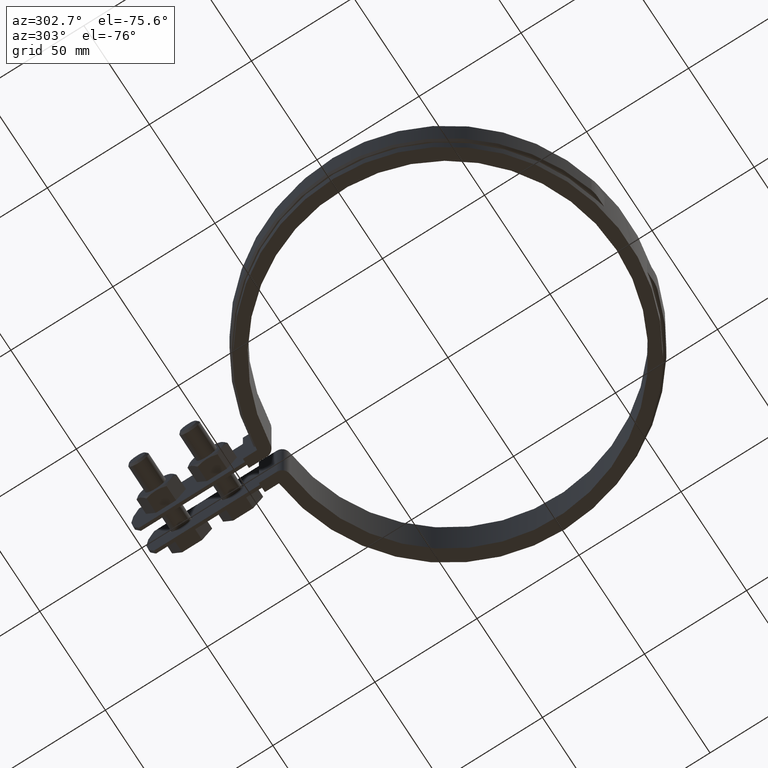
[diagram: clean part render]
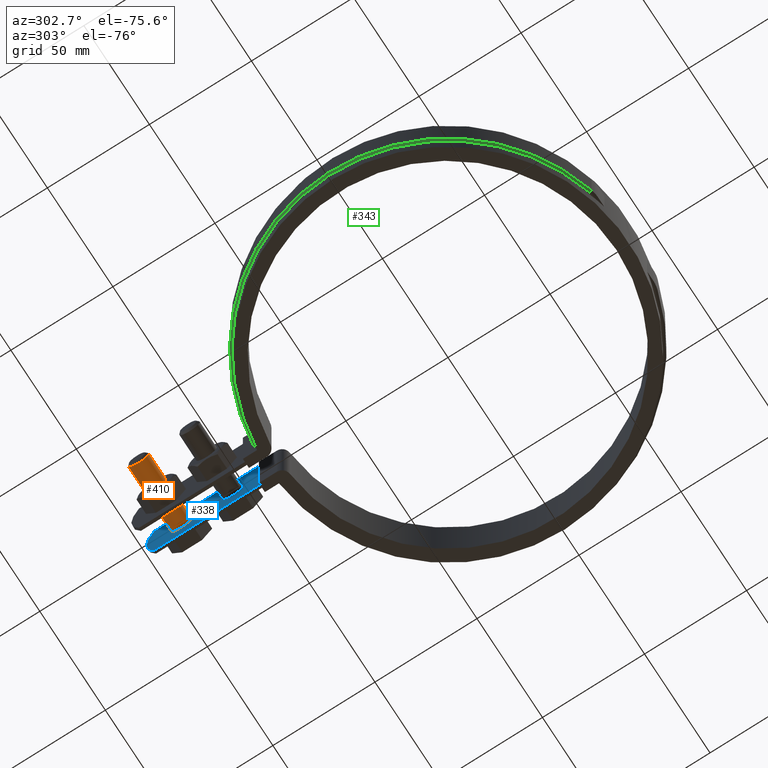
[diagram: same view with three faces highlighted in distinct colors, each labeled with its STEP entity id]
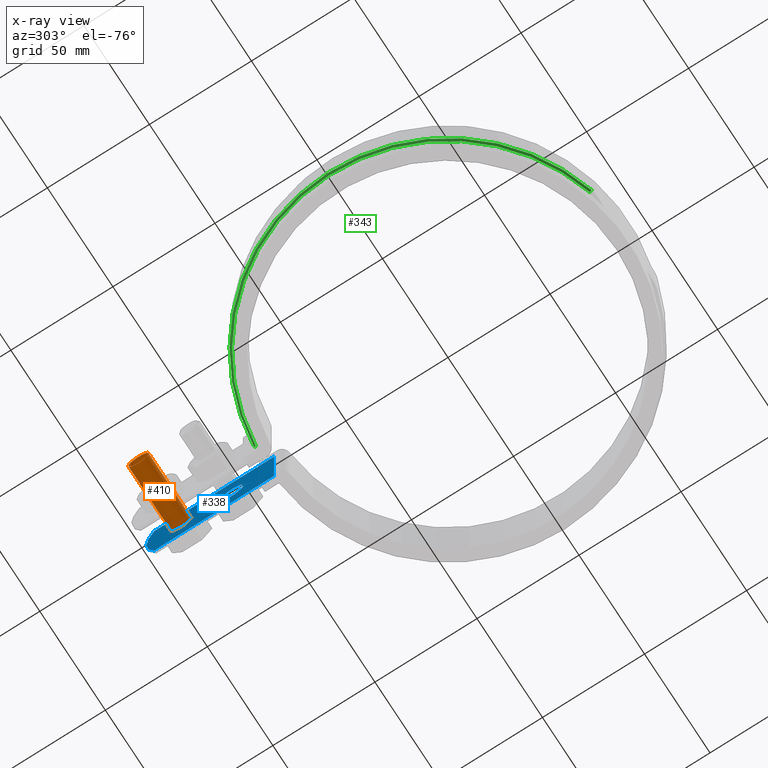
[diagram: x-ray of the same camera — body ghosted, the three highlighted faces saturated]
A machine part, auxiliary view with three faces highlighted in distinct colors.
The next image is the same camera in x-ray (body ghosted, the three faces saturated) — at least one of them is partly hidden behind the body in this view.
Their STEP definitions:

[orange] entity #410 — the highlighted cylindrical surface (bore or boss wall) has radius 5 mm, axis along (1, -0, -0).
#410 = ADVANCED_FACE( '', ( #676, #677 ), #678, .T. );
#676 = FACE_OUTER_BOUND( '', #1754, .T. );
#677 = FACE_OUTER_BOUND( '', #1755, .T. );
#678 = CYLINDRICAL_SURFACE( '', #1756, 4.99999999999992 );
#1754 = EDGE_LOOP( '', ( #4212 ) );
#1755 = EDGE_LOOP( '', ( #4213 ) );
#1756 = AXIS2_PLACEMENT_3D( '', #4214, #4215, #4216 );
#4212 = ORIENTED_EDGE( '', *, *, #4903, .F. );
#4213 = ORIENTED_EDGE( '', *, *, #4907, .T. );
#4214 = CARTESIAN_POINT( '', ( -28.4999999999988, 134.002986998692, -16.0000000000000 ) );
#4215 = DIRECTION( '', ( 1.00000000000000, -6.22721247786546E-017, -3.08148791101963E-033 ) );
#4216 = DIRECTION( '', ( -3.08148791101963E-033, 0.000000000000000, -1.00000000000000 ) );
#4903 = EDGE_CURVE( '', #5514, #5514, #5515, .T. );
#4907 = EDGE_CURVE( '', #5521, #5521, #5522, .T. );
#5514 = VERTEX_POINT( '', #8340 );
#5515 = CIRCLE( '', #8341, 4.99999999999992 );
#5521 = VERTEX_POINT( '', #8350 );
#5522 = CIRCLE( '', #8351, 4.99999999999992 );
#8340 = CARTESIAN_POINT( '', ( 6.50000000000001, 134.002986998692, -20.9999999999999 ) );
#8341 = AXIS2_PLACEMENT_3D( '', #9065, #9066, #9067 );
#8350 = CARTESIAN_POINT( '', ( -27.4999999999989, 134.002986998692, -20.9999999999999 ) );
#8351 = AXIS2_PLACEMENT_3D( '', #9071, #9072, #9073 );
#9065 = CARTESIAN_POINT( '', ( 6.50000000000001, 134.002986998692, -16.0000000000000 ) );
#9066 = DIRECTION( '', ( 1.00000000000000, -6.22721247786546E-017, -3.08148791101963E-033 ) );
#9067 = DIRECTION( '', ( -3.08148791101963E-033, 0.000000000000000, -1.00000000000000 ) );
#9071 = CARTESIAN_POINT( '', ( -27.4999999999989, 134.002986998692, -16.0000000000000 ) );
#9072 = DIRECTION( '', ( 1.00000000000000, -6.22721247786546E-017, -3.08148791101963E-033 ) );
#9073 = DIRECTION( '', ( -3.08148791101963E-033, 0.000000000000000, -1.00000000000000 ) );

[blue] entity #338 — the highlighted planar face has unit normal (1, 0, 0).
#338 = ADVANCED_FACE( '', ( #518, #519, #520 ), #521, .F. );
#518 = FACE_OUTER_BOUND( '', #1223, .T. );
#519 = FACE_BOUND( '', #1224, .T. );
#520 = FACE_BOUND( '', #1225, .T. );
#521 = PLANE( '', #1226 );
#1223 = EDGE_LOOP( '', ( #2844, #2845, #2846, #2847 ) );
#1224 = EDGE_LOOP( '', ( #2848 ) );
#1225 = EDGE_LOOP( '', ( #2849 ) );
#1226 = AXIS2_PLACEMENT_3D( '', #2850, #2851, #2852 );
#2844 = ORIENTED_EDGE( '', *, *, #4702, .T. );
#2845 = ORIENTED_EDGE( '', *, *, #4694, .T. );
#2846 = ORIENTED_EDGE( '', *, *, #4681, .F. );
#2847 = ORIENTED_EDGE( '', *, *, #4686, .F. );
#2848 = ORIENTED_EDGE( '', *, *, #4704, .F. );
#2849 = ORIENTED_EDGE( '', *, *, #4684, .F. );
#2850 = CARTESIAN_POINT( '', ( 5.00000000000000, 151.002986998692, 0.000000000000000 ) );
#2851 = DIRECTION( '', ( 1.00000000000000, 2.41479936751300E-049, 3.87781752444833E-033 ) );
#2852 = DIRECTION( '', ( -3.79822709830392E-065, 1.00000000000000, -6.22721247786546E-017 ) );
#4681 = EDGE_CURVE( '', #5140, #5142, #5143, .T. );
#4684 = EDGE_CURVE( '', #5147, #5147, #5148, .F. );
#4686 = EDGE_CURVE( '', #5151, #5140, #5152, .T. );
#4694 = EDGE_CURVE( '', #5163, #5142, #5164, .T. );
#4702 = EDGE_CURVE( '', #5151, #5163, #5174, .T. );
#4704 = EDGE_CURVE( '', #5176, #5176, #5177, .F. );
#5140 = VERTEX_POINT( '', #6761 );
#5142 = VERTEX_POINT( '', #6764 );
#5143 = LINE( '', #6765, #6766 );
#5147 = VERTEX_POINT( '', #6770 );
#5148 = CIRCLE( '', #6771, 5.50000000000000 );
#5151 = VERTEX_POINT( '', #6774 );
#5152 = CIRCLE( '', #6775, 36.0000000000000 );
#5163 = VERTEX_POINT( '', #6829 );
#5164 = LINE( '', #6830, #6831 );
#5174 = LINE( '', #6883, #6884 );
#5176 = VERTEX_POINT( '', #6887 );
#5177 = CIRCLE( '', #6888, 5.50000000000000 );
#6761 = CARTESIAN_POINT( '', ( 5.00000000000000, 147.252017991886, 6.18696259100882E-031 ) );
#6764 = CARTESIAN_POINT( '', ( 5.00000000000000, 88.3727899299326, 0.000000000000000 ) );
#6765 = CARTESIAN_POINT( '', ( 5.00000000000000, 1.20739968375650E-048, 0.000000000000000 ) );
#6766 = VECTOR( '', #8759, 1000.00000000000 );
#6770 = CARTESIAN_POINT( '', ( 5.00000000000000, 109.002986998692, -21.5000000000000 ) );
#6771 = AXIS2_PLACEMENT_3D( '', #8766, #8767, #8768 );
#6774 = CARTESIAN_POINT( '', ( 5.00000000000000, 147.252017991886, -32.0000000000000 ) );
#6775 = AXIS2_PLACEMENT_3D( '', #8772, #8773, #8774 );
#6829 = CARTESIAN_POINT( '', ( 5.00000000000000, 88.3727899299326, -32.0000000000000 ) );
#6830 = CARTESIAN_POINT( '', ( 5.00000000000000, 88.3727899299326, 0.000000000000000 ) );
#6831 = VECTOR( '', #8787, 1000.00000000000 );
#6883 = CARTESIAN_POINT( '', ( 5.00000000000000, 151.002986998692, -32.0000000000000 ) );
#6884 = VECTOR( '', #8802, 1000.00000000000 );
#6887 = CARTESIAN_POINT( '', ( 5.00000000000000, 134.002986998692, -21.5000000000000 ) );
#6888 = AXIS2_PLACEMENT_3D( '', #8804, #8805, #8806 );
#8759 = DIRECTION( '', ( 2.41479936751300E-049, -1.00000000000000, 0.000000000000000 ) );
#8766 = CARTESIAN_POINT( '', ( 5.00000000000000, 109.002986998692, -16.0000000000000 ) );
#8767 = DIRECTION( '', ( 1.00000000000000, 2.41479936751300E-049, 3.87781752444833E-033 ) );
#8768 = DIRECTION( '', ( 3.87781752444833E-033, 0.000000000000000, -1.00000000000000 ) );
#8772 = CARTESIAN_POINT( '', ( 5.00000000000000, 115.002986998692, -16.0000000000000 ) );
#8773 = DIRECTION( '', ( 1.00000000000000, 2.41479936751300E-049, 3.87781752444833E-033 ) );
#8774 = DIRECTION( '', ( 3.87781752444833E-033, 0.000000000000000, -1.00000000000000 ) );
#8787 = DIRECTION( '', ( 0.000000000000000, 0.000000000000000, 1.00000000000000 ) );
#8802 = DIRECTION( '', ( 2.41479936751300E-049, -1.00000000000000, 0.000000000000000 ) );
#8804 = CARTESIAN_POINT( '', ( 5.00000000000000, 134.002986998692, -16.0000000000000 ) );
#8805 = DIRECTION( '', ( 1.00000000000000, 2.41479936751300E-049, 3.87781752444833E-033 ) );
#8806 = DIRECTION( '', ( 3.87781752444833E-033, 0.000000000000000, -1.00000000000000 ) );

[green] entity #343 — the highlighted conical surface has half-angle 45 deg.
#343 = ADVANCED_FACE( '', ( #536 ), #537, .T. );
#536 = FACE_OUTER_BOUND( '', #1241, .T. );
#537 = CONICAL_SURFACE( '', #1242, 89.1000000000000, 0.785398163397448 );
#1241 = EDGE_LOOP( '', ( #2887, #2888, #2889, #2890 ) );
#1242 = AXIS2_PLACEMENT_3D( '', #2891, #2892, #2893 );
#2887 = ORIENTED_EDGE( '', *, *, #4714, .F. );
#2888 = ORIENTED_EDGE( '', *, *, #4715, .F. );
#2889 = ORIENTED_EDGE( '', *, *, #4716, .F. );
#2890 = ORIENTED_EDGE( '', *, *, #4717, .F. );
#2891 = CARTESIAN_POINT( '', ( 3.46944695195361E-015, 2.77555756156289E-014, -26.0000000000000 ) );
#2892 = DIRECTION( '', ( 0.000000000000000, 0.000000000000000, 1.00000000000000 ) );
#2893 = DIRECTION( '', ( 1.00000000000000, 0.000000000000000, 0.000000000000000 ) );
#4714 = EDGE_CURVE( '', #5196, #5197, #5198, .F. );
#4715 = EDGE_CURVE( '', #5199, #5196, #5200, .T. );
#4716 = EDGE_CURVE( '', #5201, #5199, #5202, .T. );
#4717 = EDGE_CURVE( '', #5197, #5201, #5203, .T. );
#5196 = VERTEX_POINT( '', #6915 );
#5197 = VERTEX_POINT( '', #6916 );
#5198 = B_SPLINE_CURVE_WITH_KNOTS( '', 3, ( #6917, #6918, #6919, #6920 ), .UNSPECIFIED., .F., .F., ( 4, 4 ), ( 706.979638180268, 706.981055525697 ), .UNSPECIFIED. );
#5199 = VERTEX_POINT( '', #6921 );
#5200 = CIRCLE( '', #6922, 89.1000000000000 );
#5201 = VERTEX_POINT( '', #6923 );
#5202 = LINE( '', #6924, #6925 );
#5203 = CIRCLE( '', #6926, 90.1000000000000 );
#6915 = CARTESIAN_POINT( '', ( -8.40000000000000, 88.7031566518351, -26.0000000000000 ) );
#6916 = CARTESIAN_POINT( '', ( -8.40000000000000, 89.7075805046597, -25.0000000000000 ) );
#6917 = CARTESIAN_POINT( '', ( -8.40000000000000, 89.7075805046690, -24.9999999999908 ) );
#6918 = CARTESIAN_POINT( '', ( -8.40000000000000, 89.3727807525691, -25.3333415728480 ) );
#6919 = CARTESIAN_POINT( '', ( -8.40000000000000, 89.0379728940579, -25.6666749990632 ) );
#6920 = CARTESIAN_POINT( '', ( -8.40000000000000, 88.7031566518552, -25.9999999999800 ) );
#6921 = CARTESIAN_POINT( '', ( -24.9317233620841, -85.5407456724367, -26.0000000000000 ) );
#6922 = AXIS2_PLACEMENT_3D( '', #8818, #8819, #8820 );
#6923 = CARTESIAN_POINT( '', ( -25.2115406837686, -86.5007989347536, -25.0000000000000 ) );
#6924 = CARTESIAN_POINT( '', ( -25.2115406837686, -86.5007989347536, -25.0000000000000 ) );
#6925 = VECTOR( '', #8821, 1000.00000000000 );
#6926 = AXIS2_PLACEMENT_3D( '', #8822, #8823, #8824 );
#8818 = CARTESIAN_POINT( '', ( 3.46944695195361E-015, 2.77555756156289E-014, -26.0000000000000 ) );
#8819 = DIRECTION( '', ( 0.000000000000000, 0.000000000000000, -1.00000000000000 ) );
#8820 = DIRECTION( '', ( -1.00000000000000, 0.000000000000000, 0.000000000000000 ) );
#8821 = DIRECTION( '', ( 0.197860725656531, 0.678860172084553, -0.707106781186549 ) );
#8822 = CARTESIAN_POINT( '', ( 3.46944695195361E-015, 2.77555756156289E-014, -25.0000000000000 ) );
#8823 = DIRECTION( '', ( 0.000000000000000, 0.000000000000000, 1.00000000000000 ) );
#8824 = DIRECTION( '', ( 1.00000000000000, 0.000000000000000, 0.000000000000000 ) );